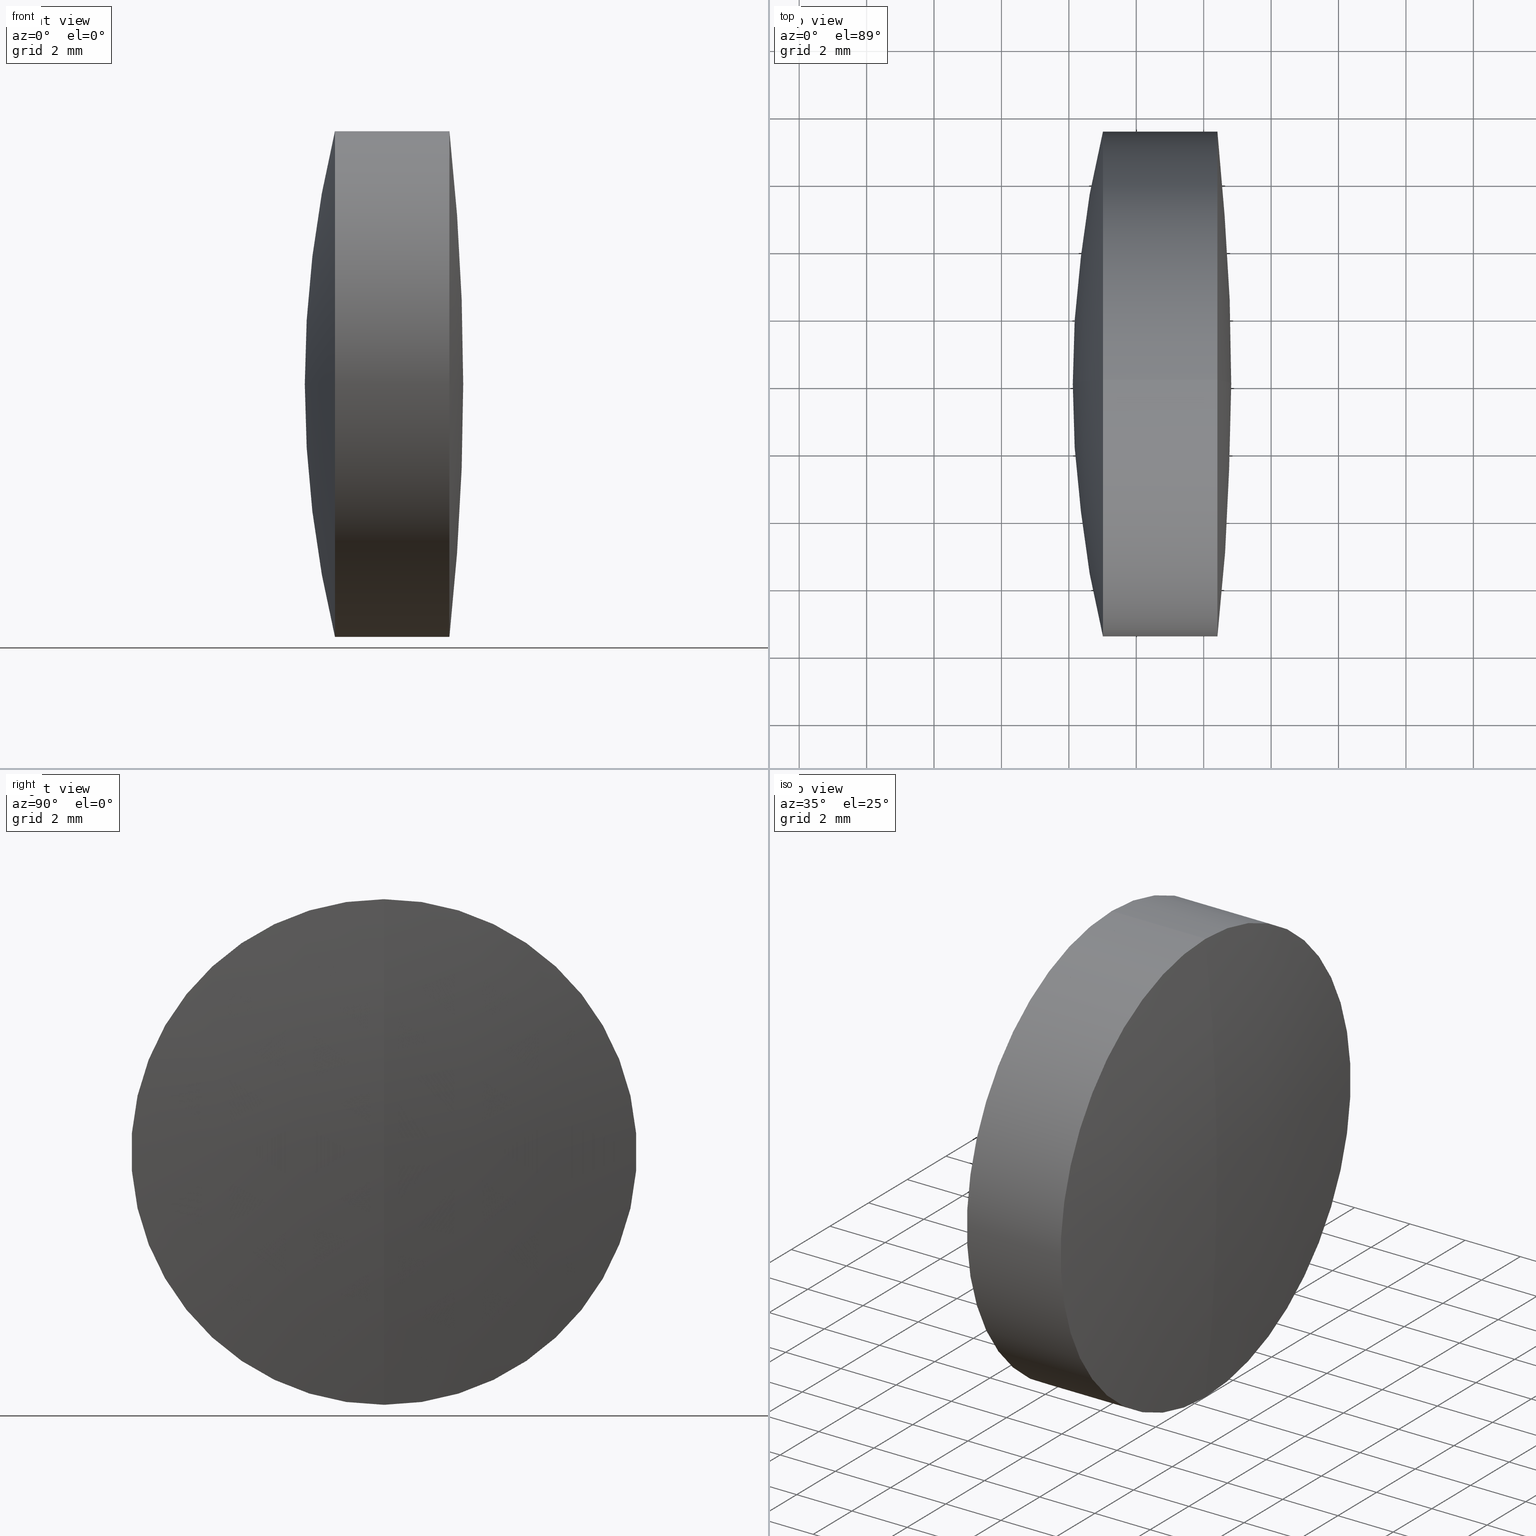
[diagram: canonical four-view strip — front | top / right | iso, engineering-drawing reading convention]
A machine part, canonical four-view strip (front | top / right | iso — engineering-drawing reading convention). The complete STEP part file that produces these views, byte-faithful:
ISO-10303-21;
HEADER;
FILE_DESCRIPTION (( 'STEP AP214' ),
    '1' );
FILE_NAME ('145029.STEP',
    '2019-05-11T02:32:06',
    ( 'user' ),
    ( '΢���й�' ),
    'SwSTEP 2.0',
    'SolidWorks 2016',
    '' );
FILE_SCHEMA (( 'AUTOMOTIVE_DESIGN' ));
ENDSEC;

DATA;
#1 = EDGE_LOOP ( 'NONE', ( #32, #20, #166 ) ) ;
#2 = EDGE_CURVE ( 'NONE', #65, #75, #78, .T. ) ;
#3 = CIRCLE ( 'NONE', #100, 7.500000000000005300 ) ;
#4 = ORIENTED_EDGE ( 'NONE', *, *, #226, .T. ) ;
#5 = ORIENTED_EDGE ( 'NONE', *, *, #72, .T. ) ;
#6 = CARTESIAN_POINT ( 'NONE',  ( 13.01076923225601200, 0.0000000000000000000, -7.500000000000007100 ) ) ;
#7 = AXIS2_PLACEMENT_3D ( 'NONE', #273, #58, #145 ) ;
#8 = CARTESIAN_POINT ( 'NONE',  ( 44.00422892942437900, 0.0000000000000000000, 2.710505431212750000E-017 ) ) ;
#9 = CARTESIAN_POINT ( 'NONE',  ( -52.15877107057561800, 0.0000000000000000000, 0.0000000000000000000 ) ) ;
#10 = DIRECTION ( 'NONE',  ( 0.0000000000000000000, 0.0000000000000000000, 1.000000000000000000 ) ) ;
#11 = LINE ( 'NONE', #342, #49 ) ;
#12 = CARTESIAN_POINT ( 'NONE',  ( 15.01622892942437200, 0.0000000000000000000, 1.446899320903621900E-015 ) ) ;
#13 = CARTESIAN_POINT ( 'NONE',  ( 0.0000000000000000000, 0.0000000000000000000, 0.0000000000000000000 ) ) ;
#14 = PRODUCT_DEFINITION_SHAPE ( 'NONE', 'NONE',  #95 ) ;
#15 = CARTESIAN_POINT ( 'NONE',  ( 13.76976148905017500, 0.0000000000000000000, 0.0000000000000000000 ) ) ;
#16 = DIRECTION ( 'NONE',  ( -1.000000000000000000, -0.0000000000000000000, -0.0000000000000000000 ) ) ;
#17 = CARTESIAN_POINT ( 'NONE',  ( -8.170771070575630900, 0.0000000000000000000, 2.710505431213761100E-017 ) ) ;
#18 = EDGE_CURVE ( 'NONE', #159, #134, #24, .T. ) ;
#19 = ORIENTED_EDGE ( 'NONE', *, *, #313, .F. ) ;
#20 = ORIENTED_EDGE ( 'NONE', *, *, #318, .T. ) ;
#21 = DIRECTION ( 'NONE',  ( -1.000000000000000000, -0.0000000000000000000, -0.0000000000000000000 ) ) ;
#22 = DIRECTION ( 'NONE',  ( -1.000000000000000000, -0.0000000000000000000, -0.0000000000000000000 ) ) ;
#23 = DIRECTION ( 'NONE',  ( 0.0000000000000000000, 0.0000000000000000000, 1.000000000000000000 ) ) ;
#24 = CIRCLE ( 'NONE', #295, 7.500000000000000000 ) ;
#25 = AXIS2_PLACEMENT_3D ( 'NONE', #73, #235, #68 ) ;
#26 = CARTESIAN_POINT ( 'NONE',  ( -8.170771070575630900, 0.0000000000000000000, 2.710505431213761100E-017 ) ) ;
#27 = AXIS2_PLACEMENT_3D ( 'NONE', #320, #286, #225 ) ;
#28 = SURFACE_SIDE_STYLE ('',( #152 ) ) ;
#29 = FACE_OUTER_BOUND ( 'NONE', #102, .T. ) ;
#30 = DIRECTION ( 'NONE',  ( 0.0000000000000000000, 0.0000000000000000000, 1.000000000000000000 ) ) ;
#31 = DIRECTION ( 'NONE',  ( 0.0000000000000000000, -1.224646799147353500E-016, 1.000000000000000000 ) ) ;
#32 = ORIENTED_EDGE ( 'NONE', *, *, #41, .F. ) ;
#33 = SPHERICAL_SURFACE ( 'NONE', #331, 23.18700000000000100 ) ;
#34 = EDGE_CURVE ( 'NONE', #138, #269, #220, .T. ) ;
#35 = ORIENTED_EDGE ( 'NONE', *, *, #318, .F. ) ;
#36 = EDGE_CURVE ( 'NONE', #134, #109, #296, .T. ) ;
#37 = UNCERTAINTY_MEASURE_WITH_UNIT (LENGTH_MEASURE( 1.000000000000000100E-005 ), #121, 'distance_accuracy_value', 'NONE');
#38 = DIRECTION ( 'NONE',  ( 0.0000000000000000000, 0.0000000000000000000, -1.000000000000000000 ) ) ;
#39 = DIRECTION ( 'NONE',  ( 0.0000000000000000000, -1.000000000000000000, -1.224646799147353200E-016 ) ) ;
#40 = DIRECTION ( 'NONE',  ( -0.0000000000000000000, 1.000000000000000000, 1.224646799147353200E-016 ) ) ;
#41 = EDGE_CURVE ( 'NONE', #347, #315, #341, .T. ) ;
#42 = CARTESIAN_POINT ( 'NONE',  ( -52.15877107057561800, 0.0000000000000000000, 0.0000000000000000000 ) ) ;
#43 = CARTESIAN_POINT ( 'NONE',  ( 16.40726006000681300, 0.0000000000000000000, 0.0000000000000000000 ) ) ;
#44 = AXIS2_PLACEMENT_3D ( 'NONE', #43, #67, #48 ) ;
#45 = PRESENTATION_STYLE_ASSIGNMENT (( #83 ) ) ;
#46 =( NAMED_UNIT ( * ) PLANE_ANGLE_UNIT ( ) SI_UNIT ( $, .RADIAN. ) );
#47 = DIRECTION ( 'NONE',  ( -1.000000000000000000, -0.0000000000000000000, -0.0000000000000000000 ) ) ;
#48 = DIRECTION ( 'NONE',  ( 0.0000000000000000000, 0.0000000000000000000, 1.000000000000000000 ) ) ;
#49 = VECTOR ( 'NONE', #21, 1000.000000000000000 ) ;
#50 =( GEOMETRIC_REPRESENTATION_CONTEXT ( 3 ) GLOBAL_UNCERTAINTY_ASSIGNED_CONTEXT ( ( #37 ) ) GLOBAL_UNIT_ASSIGNED_CONTEXT ( ( #121, #63, #312 ) ) REPRESENTATION_CONTEXT ( 'NONE', 'WORKASPACE' ) );
#51 = SPHERICAL_SURFACE ( 'NONE', #185, 23.18700000000000100 ) ;
#52 = FILL_AREA_STYLE ('',( #265 ) ) ;
#53 = DIRECTION ( 'NONE',  ( 0.0000000000000000000, -1.000000000000000000, 0.0000000000000000000 ) ) ;
#54 = VERTEX_POINT ( 'NONE', #339 ) ;
#55 = EDGE_CURVE ( 'NONE', #136, #134, #11, .T. ) ;
#56 = ORIENTED_EDGE ( 'NONE', *, *, #36, .T. ) ;
#57 = CIRCLE ( 'NONE', #205, 7.499999999999992900 ) ;
#58 = DIRECTION ( 'NONE',  ( -1.000000000000000000, -0.0000000000000000000, -0.0000000000000000000 ) ) ;
#59 = DIRECTION ( 'NONE',  ( -0.0000000000000000000, 1.000000000000000000, 1.224646799147353200E-016 ) ) ;
#60 = ORIENTED_EDGE ( 'NONE', *, *, #41, .T. ) ;
#61 = DIRECTION ( 'NONE',  ( 0.0000000000000000000, 0.0000000000000000000, 1.000000000000000000 ) ) ;
#62 = ADVANCED_FACE ( 'NONE', ( #317 ), #332, .T. ) ;
#63 =( NAMED_UNIT ( * ) PLANE_ANGLE_UNIT ( ) SI_UNIT ( $, .RADIAN. ) );
#64 = CARTESIAN_POINT ( 'NONE',  ( 16.40726006000681300, 0.0000000000000000000, 7.499999999999992900 ) ) ;
#65 = VERTEX_POINT ( 'NONE', #64 ) ;
#66 = ORIENTED_EDGE ( 'NONE', *, *, #306, .T. ) ;
#67 = DIRECTION ( 'NONE',  ( -1.000000000000000000, -0.0000000000000000000, -0.0000000000000000000 ) ) ;
#68 = DIRECTION ( 'NONE',  ( 0.0000000000000000000, 0.0000000000000000000, 1.000000000000000000 ) ) ;
#69 = AXIS2_PLACEMENT_3D ( 'NONE', #17, #53, #198 ) ;
#70 = VECTOR ( 'NONE', #82, 1000.000000000000000 ) ;
#71 = PRESENTATION_STYLE_ASSIGNMENT (( #204 ) ) ;
#72 = EDGE_CURVE ( 'NONE', #54, #136, #224, .T. ) ;
#73 = CARTESIAN_POINT ( 'NONE',  ( 13.76976148905017200, 0.0000000000000000000, 0.0000000000000000000 ) ) ;
#74 = CIRCLE ( 'NONE', #25, 7.500000000000005300 ) ;
#75 = VERTEX_POINT ( 'NONE', #304 ) ;
#76 = CARTESIAN_POINT ( 'NONE',  ( 16.40726006000681300, 9.184850993605144000E-016, -7.499999999999992900 ) ) ;
#77 = CARTESIAN_POINT ( 'NONE',  ( 16.81622892942437300, 0.0000000000000000000, 4.223500648559434300E-015 ) ) ;
#78 = LINE ( 'NONE', #230, #153 ) ;
#79 = AXIS2_PLACEMENT_3D ( 'NONE', #168, #333, #38 ) ;
#80 = EDGE_LOOP ( 'NONE', ( #35, #60, #298 ) ) ;
#81 = CIRCLE ( 'NONE', #135, 7.500000000000000000 ) ;
#82 = DIRECTION ( 'NONE',  ( -1.000000000000000000, -0.0000000000000000000, -0.0000000000000000000 ) ) ;
#83 = SURFACE_STYLE_USAGE ( .BOTH. , #282 ) ;
#84 = CARTESIAN_POINT ( 'NONE',  ( 16.40726006000681300, 0.0000000000000000000, 0.0000000000000000000 ) ) ;
#85 = ORIENTED_EDGE ( 'NONE', *, *, #2, .F. ) ;
#86 = CARTESIAN_POINT ( 'NONE',  ( -52.15877107057561800, 0.0000000000000000000, 0.0000000000000000000 ) ) ;
#87 = PRESENTATION_STYLE_ASSIGNMENT (( #101 ) ) ;
#88 = AXIS2_PLACEMENT_3D ( 'NONE', #324, #186, #252 ) ;
#89 = APPLICATION_PROTOCOL_DEFINITION ( 'draft international standard', 'automotive_design', 1998, #130 ) ;
#90 = ORIENTED_EDGE ( 'NONE', *, *, #277, .T. ) ;
#91 = ADVANCED_FACE ( 'NONE', ( #29 ), #143, .T. ) ;
#92 = DIRECTION ( 'NONE',  ( -0.0000000000000000000, -1.000000000000000000, -0.0000000000000000000 ) ) ;
#93 = DIRECTION ( 'NONE',  ( 0.0000000000000000000, 0.0000000000000000000, 1.000000000000000000 ) ) ;
#94 = CARTESIAN_POINT ( 'NONE',  ( 13.01076923225601300, 0.0000000000000000000, 0.0000000000000000000 ) ) ;
#95 = PRODUCT_DEFINITION ( 'δ֪', '', #289, #258 ) ;
#96 = APPLICATION_CONTEXT ( 'automotive_design' ) ;
#97 = ORIENTED_EDGE ( 'NONE', *, *, #244, .T. ) ;
#98 = SPHERICAL_SURFACE ( 'NONE', #173, 31.88799999999999800 ) ;
#99 = FILL_AREA_STYLE ('',( #192 ) ) ;
#100 = AXIS2_PLACEMENT_3D ( 'NONE', #280, #323, #292 ) ;
#101 = SURFACE_STYLE_USAGE ( .BOTH. , #28 ) ;
#102 = EDGE_LOOP ( 'NONE', ( #212, #246, #272, #241 ) ) ;
#103 = ORIENTED_EDGE ( 'NONE', *, *, #34, .F. ) ;
#104 = MECHANICAL_DESIGN_GEOMETRIC_PRESENTATION_REPRESENTATION (  '', ( #326 ), #157 ) ;
#105 =( GEOMETRIC_REPRESENTATION_CONTEXT ( 3 ) GLOBAL_UNCERTAINTY_ASSIGNED_CONTEXT ( ( #178 ) ) GLOBAL_UNIT_ASSIGNED_CONTEXT ( ( #199, #46, #247 ) ) REPRESENTATION_CONTEXT ( 'NONE', 'WORKASPACE' ) );
#106 = EDGE_LOOP ( 'NONE', ( #128, #147, #56 ) ) ;
#107 = EDGE_LOOP ( 'NONE', ( #187, #97, #194 ) ) ;
#108 = DIRECTION ( 'NONE',  ( 0.0000000000000000000, -1.000000000000000000, 0.0000000000000000000 ) ) ;
#109 = VERTEX_POINT ( 'NONE', #167 ) ;
#110 = AXIS2_PLACEMENT_3D ( 'NONE', #9, #108, #249 ) ;
#111 = DIRECTION ( 'NONE',  ( 0.0000000000000000000, 0.0000000000000000000, 1.000000000000000000 ) ) ;
#112 = DIRECTION ( 'NONE',  ( 0.0000000000000000000, 0.0000000000000000000, 1.000000000000000000 ) ) ;
#113 = FILL_AREA_STYLE ('',( #149 ) ) ;
#114 = ORIENTED_EDGE ( 'NONE', *, *, #123, .T. ) ;
#115 = DIRECTION ( 'NONE',  ( 0.0000000000000000000, 1.000000000000000000, 0.0000000000000000000 ) ) ;
#116 = AXIS2_PLACEMENT_3D ( 'NONE', #215, #140, #325 ) ;
#117 = CARTESIAN_POINT ( 'NONE',  ( 13.76976148905017200, 9.184850993605159800E-016, -7.500000000000007100 ) ) ;
#118 =( NAMED_UNIT ( * ) SI_UNIT ( $, .STERADIAN. ) SOLID_ANGLE_UNIT ( ) );
#119 = CARTESIAN_POINT ( 'NONE',  ( 13.76976148905017500, 9.184850993605147900E-016, -7.500000000000000000 ) ) ;
#120 = FACE_OUTER_BOUND ( 'NONE', #148, .T. ) ;
#121 =( LENGTH_UNIT ( ) NAMED_UNIT ( * ) SI_UNIT ( .MILLI., .METRE. ) );
#122 = CYLINDRICAL_SURFACE ( 'NONE', #311, 7.499999999999999100 ) ;
#123 = EDGE_CURVE ( 'NONE', #315, #269, #150, .T. ) ;
#124 = DIRECTION ( 'NONE',  ( 1.000000000000000000, 0.0000000000000000000, 0.0000000000000000000 ) ) ;
#125 = CARTESIAN_POINT ( 'NONE',  ( -8.170771070575630900, 0.0000000000000000000, 2.710505431213761100E-017 ) ) ;
#126 = PRESENTATION_LAYER_ASSIGNMENT (  '', '', ( #262 ) ) ;
#127 = DIRECTION ( 'NONE',  ( 0.0000000000000000000, 1.000000000000000000, 0.0000000000000000000 ) ) ;
#128 = ORIENTED_EDGE ( 'NONE', *, *, #226, .F. ) ;
#129 = EDGE_CURVE ( 'NONE', #54, #159, #266, .T. ) ;
#130 = APPLICATION_CONTEXT ( 'automotive_design' ) ;
#131 = CIRCLE ( 'NONE', #264, 31.88799999999999800 ) ;
#132 = PRODUCT_RELATED_PRODUCT_CATEGORY ( 'part', '', ( #218 ) ) ;
#133 = MANIFOLD_SOLID_BREP ( '��ת3', #281 ) ;
#134 = VERTEX_POINT ( 'NONE', #6 ) ;
#135 = AXIS2_PLACEMENT_3D ( 'NONE', #15, #297, #139 ) ;
#136 = VERTEX_POINT ( 'NONE', #119 ) ;
#137 = ADVANCED_FACE ( 'NONE', ( #236 ), #301, .T. ) ;
#138 = VERTEX_POINT ( 'NONE', #308 ) ;
#139 = DIRECTION ( 'NONE',  ( 0.0000000000000000000, 0.0000000000000000000, 1.000000000000000000 ) ) ;
#140 = DIRECTION ( 'NONE',  ( -1.000000000000000000, -0.0000000000000000000, -0.0000000000000000000 ) ) ;
#141 = ADVANCED_FACE ( 'NONE', ( #161 ), #33, .F. ) ;
#142 = CARTESIAN_POINT ( 'NONE',  ( 13.01076923225601200, -9.184850993605155800E-016, 7.500000000000007100 ) ) ;
#143 = CYLINDRICAL_SURFACE ( 'NONE', #88, 7.500000000000000000 ) ;
#144 = DIRECTION ( 'NONE',  ( 0.0000000000000000000, 0.0000000000000000000, 1.000000000000000000 ) ) ;
#145 = DIRECTION ( 'NONE',  ( 0.0000000000000000000, 0.0000000000000000000, 1.000000000000000000 ) ) ;
#146 = AXIS2_PLACEMENT_3D ( 'NONE', #42, #237, #111 ) ;
#147 = ORIENTED_EDGE ( 'NONE', *, *, #18, .T. ) ;
#148 = EDGE_LOOP ( 'NONE', ( #103, #90, #336 ) ) ;
#149 = FILL_AREA_STYLE_COLOUR ( '', #294 ) ;
#150 = LINE ( 'NONE', #206, #70 ) ;
#151 = DIRECTION ( 'NONE',  ( 0.0000000000000000000, 1.000000000000000000, 0.0000000000000000000 ) ) ;
#152 = SURFACE_STYLE_FILL_AREA ( #52 ) ;
#153 = VECTOR ( 'NONE', #22, 1000.000000000000000 ) ;
#154 = ORIENTED_EDGE ( 'NONE', *, *, #344, .T. ) ;
#155 = ADVANCED_BREP_SHAPE_REPRESENTATION ( '145029', ( #221, #133, #216 ), #243 ) ;
#156 = EDGE_LOOP ( 'NONE', ( #345, #114, #19, #85 ) ) ;
#157 =( GEOMETRIC_REPRESENTATION_CONTEXT ( 3 ) GLOBAL_UNCERTAINTY_ASSIGNED_CONTEXT ( ( #256 ) ) GLOBAL_UNIT_ASSIGNED_CONTEXT ( ( #329, #228, #118 ) ) REPRESENTATION_CONTEXT ( 'NONE', 'WORKASPACE' ) );
#158 = EDGE_LOOP ( 'NONE', ( #305, #4, #314 ) ) ;
#159 = VERTEX_POINT ( 'NONE', #142 ) ;
#160 = ORIENTED_EDGE ( 'NONE', *, *, #55, .T. ) ;
#161 = FACE_OUTER_BOUND ( 'NONE', #184, .T. ) ;
#162 = DIRECTION ( 'NONE',  ( 0.0000000000000000000, 1.000000000000000000, 0.0000000000000000000 ) ) ;
#163 = ADVANCED_FACE ( 'NONE', ( #231 ), #122, .T. ) ;
#164 = ORIENTED_EDGE ( 'NONE', *, *, #34, .T. ) ;
#165 = MECHANICAL_DESIGN_GEOMETRIC_PRESENTATION_REPRESENTATION (  '', ( #262 ), #50 ) ;
#166 = ORIENTED_EDGE ( 'NONE', *, *, #330, .F. ) ;
#167 = CARTESIAN_POINT ( 'NONE',  ( 12.11622892942437700, 0.0000000000000000000, -1.925471802248412300E-015 ) ) ;
#168 = CARTESIAN_POINT ( 'NONE',  ( -8.170771070575630900, 0.0000000000000000000, 2.710505431213761100E-017 ) ) ;
#169 = ORIENTED_EDGE ( 'NONE', *, *, #277, .F. ) ;
#170 = COLOUR_RGB ( '',1.000000000000000000, 1.000000000000000000, 1.000000000000000000 ) ;
#171 = CARTESIAN_POINT ( 'NONE',  ( -8.170771070575630900, 0.0000000000000000000, 2.710505431213761100E-017 ) ) ;
#172 =( LENGTH_UNIT ( ) NAMED_UNIT ( * ) SI_UNIT ( .MILLI., .METRE. ) );
#173 = AXIS2_PLACEMENT_3D ( 'NONE', #207, #283, #287 ) ;
#174 = ADVANCED_FACE ( 'NONE', ( #209 ), #310, .T. ) ;
#175 = ORIENTED_EDGE ( 'NONE', *, *, #344, .F. ) ;
#176 = AXIS2_PLACEMENT_3D ( 'NONE', #125, #40, #248 ) ;
#177 = CIRCLE ( 'NONE', #69, 23.18700000000000100 ) ;
#178 = UNCERTAINTY_MEASURE_WITH_UNIT (LENGTH_MEASURE( 1.000000000000000100E-005 ), #199, 'distance_accuracy_value', 'NONE');
#179 = ORIENTED_EDGE ( 'NONE', *, *, #18, .F. ) ;
#180 = DIRECTION ( 'NONE',  ( -0.0000000000000000000, 1.000000000000000000, 1.224646799147353200E-016 ) ) ;
#181 = SPHERICAL_SURFACE ( 'NONE', #193, 68.97499999999999400 ) ;
#182 =( NAMED_UNIT ( * ) SI_UNIT ( $, .STERADIAN. ) SOLID_ANGLE_UNIT ( ) );
#183 = PRESENTATION_LAYER_ASSIGNMENT (  '', '', ( #208 ) ) ;
#184 = EDGE_LOOP ( 'NONE', ( #169, #164, #154 ) ) ;
#185 = AXIS2_PLACEMENT_3D ( 'NONE', #214, #222, #30 ) ;
#186 = DIRECTION ( 'NONE',  ( -1.000000000000000000, -0.0000000000000000000, -0.0000000000000000000 ) ) ;
#187 = ORIENTED_EDGE ( 'NONE', *, *, #306, .F. ) ;
#188 = CIRCLE ( 'NONE', #223, 23.18700000000000100 ) ;
#189 = ADVANCED_FACE ( 'NONE', ( #291 ), #98, .T. ) ;
#190 = DIRECTION ( 'NONE',  ( 0.0000000000000000000, 0.0000000000000000000, 1.000000000000000000 ) ) ;
#191 = CARTESIAN_POINT ( 'NONE',  ( -8.170771070575630900, 0.0000000000000000000, 2.710505431213761100E-017 ) ) ;
#192 = FILL_AREA_STYLE_COLOUR ( '', #170 ) ;
#193 = AXIS2_PLACEMENT_3D ( 'NONE', #334, #127, #250 ) ;
#194 = ORIENTED_EDGE ( 'NONE', *, *, #72, .F. ) ;
#195 = SURFACE_SIDE_STYLE ('',( #276 ) ) ;
#196 = MECHANICAL_DESIGN_GEOMETRIC_PRESENTATION_REPRESENTATION (  '', ( #208 ), #105 ) ;
#197 = CIRCLE ( 'NONE', #44, 7.499999999999992900 ) ;
#198 = DIRECTION ( 'NONE',  ( 0.0000000000000000000, 0.0000000000000000000, -1.000000000000000000 ) ) ;
#199 =( LENGTH_UNIT ( ) NAMED_UNIT ( * ) SI_UNIT ( .MILLI., .METRE. ) );
#200 = EDGE_LOOP ( 'NONE', ( #257, #66, #309 ) ) ;
#201 = ORIENTED_EDGE ( 'NONE', *, *, #330, .T. ) ;
#202 = ADVANCED_FACE ( 'NONE', ( #242 ), #181, .T. ) ;
#203 = DIRECTION ( 'NONE',  ( 0.0000000000000000000, -1.224646799147353200E-016, 1.000000000000000000 ) ) ;
#204 = SURFACE_STYLE_USAGE ( .BOTH. , #195 ) ;
#205 = AXIS2_PLACEMENT_3D ( 'NONE', #84, #274, #112 ) ;
#206 = CARTESIAN_POINT ( 'NONE',  ( -0.5519199926577972300, 9.184850993605147900E-016, -7.499999999999999100 ) ) ;
#207 = CARTESIAN_POINT ( 'NONE',  ( 44.00422892942437900, 0.0000000000000000000, 2.710505431212750000E-017 ) ) ;
#208 = STYLED_ITEM ( 'NONE', ( #71 ), #133 ) ;
#209 = FACE_OUTER_BOUND ( 'NONE', #106, .T. ) ;
#210 = CIRCLE ( 'NONE', #110, 68.97499999999999400 ) ;
#211 = AXIS2_PLACEMENT_3D ( 'NONE', #171, #162, #10 ) ;
#212 = ORIENTED_EDGE ( 'NONE', *, *, #55, .F. ) ;
#213 = SPHERICAL_SURFACE ( 'NONE', #211, 23.18700000000000100 ) ;
#214 = CARTESIAN_POINT ( 'NONE',  ( -8.170771070575630900, 0.0000000000000000000, 2.710505431213761100E-017 ) ) ;
#215 = CARTESIAN_POINT ( 'NONE',  ( 13.01076923225601300, 0.0000000000000000000, 0.0000000000000000000 ) ) ;
#216 = AXIS2_PLACEMENT_3D ( 'NONE', #13, #144, #124 ) ;
#217 = SHAPE_DEFINITION_REPRESENTATION ( #14, #155 ) ;
#218 = PRODUCT ( '145029', '145029', '', ( #284 ) ) ;
#219 = AXIS2_PLACEMENT_3D ( 'NONE', #340, #255, #190 ) ;
#220 = CIRCLE ( 'NONE', #176, 23.18700000000000100 ) ;
#221 = MANIFOLD_SOLID_BREP ( '��ת1', #271 ) ;
#222 = DIRECTION ( 'NONE',  ( 0.0000000000000000000, 1.000000000000000000, 0.0000000000000000000 ) ) ;
#223 = AXIS2_PLACEMENT_3D ( 'NONE', #263, #180, #31 ) ;
#224 = CIRCLE ( 'NONE', #290, 7.500000000000000000 ) ;
#225 = DIRECTION ( 'NONE',  ( 0.0000000000000000000, 0.0000000000000000000, 1.000000000000000000 ) ) ;
#226 = EDGE_CURVE ( 'NONE', #159, #109, #131, .T. ) ;
#227 = DIRECTION ( 'NONE',  ( -1.000000000000000000, -0.0000000000000000000, -0.0000000000000000000 ) ) ;
#228 =( NAMED_UNIT ( * ) PLANE_ANGLE_UNIT ( ) SI_UNIT ( $, .RADIAN. ) );
#229 = ADVANCED_FACE ( 'NONE', ( #316 ), #337, .T. ) ;
#230 = CARTESIAN_POINT ( 'NONE',  ( -0.5519199926577972300, 0.0000000000000000000, 7.499999999999999100 ) ) ;
#231 = FACE_OUTER_BOUND ( 'NONE', #156, .T. ) ;
#232 = FACE_OUTER_BOUND ( 'NONE', #200, .T. ) ;
#233 = DIRECTION ( 'NONE',  ( 0.0000000000000000000, 0.0000000000000000000, 1.000000000000000000 ) ) ;
#234 = ORIENTED_EDGE ( 'NONE', *, *, #123, .F. ) ;
#235 = DIRECTION ( 'NONE',  ( -1.000000000000000000, -0.0000000000000000000, -0.0000000000000000000 ) ) ;
#236 = FACE_OUTER_BOUND ( 'NONE', #80, .T. ) ;
#237 = DIRECTION ( 'NONE',  ( 0.0000000000000000000, 1.000000000000000000, 0.0000000000000000000 ) ) ;
#238 = PRESENTATION_LAYER_ASSIGNMENT (  '', '', ( #326 ) ) ;
#239 = AXIS2_PLACEMENT_3D ( 'NONE', #327, #92, #302 ) ;
#240 = ORIENTED_EDGE ( 'NONE', *, *, #2, .T. ) ;
#241 = ORIENTED_EDGE ( 'NONE', *, *, #299, .F. ) ;
#242 = FACE_OUTER_BOUND ( 'NONE', #1, .T. ) ;
#243 =( GEOMETRIC_REPRESENTATION_CONTEXT ( 3 ) GLOBAL_UNCERTAINTY_ASSIGNED_CONTEXT ( ( #261 ) ) GLOBAL_UNIT_ASSIGNED_CONTEXT ( ( #172, #346, #182 ) ) REPRESENTATION_CONTEXT ( 'NONE', 'WORKASPACE' ) );
#244 = EDGE_CURVE ( 'NONE', #267, #136, #188, .T. ) ;
#245 = EDGE_LOOP ( 'NONE', ( #234, #201, #240, #175 ) ) ;
#246 = ORIENTED_EDGE ( 'NONE', *, *, #270, .T. ) ;
#247 =( NAMED_UNIT ( * ) SI_UNIT ( $, .STERADIAN. ) SOLID_ANGLE_UNIT ( ) );
#248 = DIRECTION ( 'NONE',  ( 0.0000000000000000000, -1.224646799147353500E-016, 1.000000000000000000 ) ) ;
#249 = DIRECTION ( 'NONE',  ( 0.0000000000000000000, 0.0000000000000000000, -1.000000000000000000 ) ) ;
#250 = DIRECTION ( 'NONE',  ( 0.0000000000000000000, 0.0000000000000000000, 1.000000000000000000 ) ) ;
#251 = CIRCLE ( 'NONE', #116, 7.500000000000000000 ) ;
#252 = DIRECTION ( 'NONE',  ( 0.0000000000000000000, 0.0000000000000000000, 1.000000000000000000 ) ) ;
#253 = VECTOR ( 'NONE', #227, 1000.000000000000000 ) ;
#254 = AXIS2_PLACEMENT_3D ( 'NONE', #86, #59, #203 ) ;
#255 = DIRECTION ( 'NONE',  ( -1.000000000000000000, -0.0000000000000000000, -0.0000000000000000000 ) ) ;
#256 = UNCERTAINTY_MEASURE_WITH_UNIT (LENGTH_MEASURE( 1.000000000000000100E-005 ), #329, 'distance_accuracy_value', 'NONE');
#257 = ORIENTED_EDGE ( 'NONE', *, *, #244, .F. ) ;
#258 = PRODUCT_DEFINITION_CONTEXT ( 'detailed design', #96, 'design' ) ;
#259 = ORIENTED_EDGE ( 'NONE', *, *, #129, .F. ) ;
#260 = APPLICATION_PROTOCOL_DEFINITION ( 'draft international standard', 'automotive_design', 1998, #96 ) ;
#261 = UNCERTAINTY_MEASURE_WITH_UNIT (LENGTH_MEASURE( 1.000000000000000100E-005 ), #172, 'distance_accuracy_value', 'NONE');
#262 = STYLED_ITEM ( 'NONE', ( #45 ), #221 ) ;
#263 = CARTESIAN_POINT ( 'NONE',  ( -8.170771070575630900, 0.0000000000000000000, 2.710505431213761100E-017 ) ) ;
#264 = AXIS2_PLACEMENT_3D ( 'NONE', #8, #39, #338 ) ;
#265 = FILL_AREA_STYLE_COLOUR ( '', #285 ) ;
#266 = LINE ( 'NONE', #275, #253 ) ;
#267 = VERTEX_POINT ( 'NONE', #12 ) ;
#268 = CIRCLE ( 'NONE', #79, 23.18700000000000100 ) ;
#269 = VERTEX_POINT ( 'NONE', #117 ) ;
#270 = EDGE_CURVE ( 'NONE', #136, #54, #81, .T. ) ;
#271 = CLOSED_SHELL ( 'NONE', ( #307, #229, #189, #174, #91, #300 ) ) ;
#272 = ORIENTED_EDGE ( 'NONE', *, *, #129, .T. ) ;
#273 = CARTESIAN_POINT ( 'NONE',  ( -9.702612178336682500, 0.0000000000000000000, 0.0000000000000000000 ) ) ;
#274 = DIRECTION ( 'NONE',  ( -1.000000000000000000, -0.0000000000000000000, -0.0000000000000000000 ) ) ;
#275 = CARTESIAN_POINT ( 'NONE',  ( -9.702612178336682500, 0.0000000000000000000, 7.500000000000000000 ) ) ;
#276 = SURFACE_STYLE_FILL_AREA ( #113 ) ;
#277 = EDGE_CURVE ( 'NONE', #138, #75, #268, .T. ) ;
#278 = DIRECTION ( 'NONE',  ( -1.000000000000000000, -0.0000000000000000000, -0.0000000000000000000 ) ) ;
#279 = SPHERICAL_SURFACE ( 'NONE', #343, 23.18700000000000100 ) ;
#280 = CARTESIAN_POINT ( 'NONE',  ( 13.76976148905017200, 0.0000000000000000000, 0.0000000000000000000 ) ) ;
#281 = CLOSED_SHELL ( 'NONE', ( #137, #163, #141, #303, #62, #202 ) ) ;
#282 = SURFACE_SIDE_STYLE ('',( #322 ) ) ;
#283 = DIRECTION ( 'NONE',  ( -0.0000000000000000000, -1.000000000000000000, -0.0000000000000000000 ) ) ;
#284 = PRODUCT_CONTEXT ( 'NONE', #130, 'mechanical' ) ;
#285 = COLOUR_RGB ( '',1.000000000000000000, 1.000000000000000000, 1.000000000000000000 ) ;
#286 = DIRECTION ( 'NONE',  ( 0.0000000000000000000, 1.000000000000000000, -0.0000000000000000000 ) ) ;
#287 = DIRECTION ( 'NONE',  ( 0.0000000000000000000, 0.0000000000000000000, -1.000000000000000000 ) ) ;
#288 = DIRECTION ( 'NONE',  ( 0.0000000000000000000, 0.0000000000000000000, 1.000000000000000000 ) ) ;
#289 = PRODUCT_DEFINITION_FORMATION_WITH_SPECIFIED_SOURCE ( '�κ�', '', #218, .NOT_KNOWN. ) ;
#290 = AXIS2_PLACEMENT_3D ( 'NONE', #335, #47, #61 ) ;
#291 = FACE_OUTER_BOUND ( 'NONE', #158, .T. ) ;
#292 = DIRECTION ( 'NONE',  ( 0.0000000000000000000, 0.0000000000000000000, 1.000000000000000000 ) ) ;
#293 = EDGE_CURVE ( 'NONE', #65, #315, #57, .T. ) ;
#294 = COLOUR_RGB ( '',1.000000000000000000, 1.000000000000000000, 1.000000000000000000 ) ;
#295 = AXIS2_PLACEMENT_3D ( 'NONE', #94, #16, #233 ) ;
#296 = CIRCLE ( 'NONE', #27, 31.88799999999999800 ) ;
#297 = DIRECTION ( 'NONE',  ( -1.000000000000000000, -0.0000000000000000000, -0.0000000000000000000 ) ) ;
#298 = ORIENTED_EDGE ( 'NONE', *, *, #293, .F. ) ;
#299 = EDGE_CURVE ( 'NONE', #134, #159, #251, .T. ) ;
#300 = ADVANCED_FACE ( 'NONE', ( #232 ), #213, .T. ) ;
#301 = SPHERICAL_SURFACE ( 'NONE', #146, 68.97499999999999400 ) ;
#302 = DIRECTION ( 'NONE',  ( 0.0000000000000000000, 0.0000000000000000000, -1.000000000000000000 ) ) ;
#303 = ADVANCED_FACE ( 'NONE', ( #120 ), #51, .F. ) ;
#304 = CARTESIAN_POINT ( 'NONE',  ( 13.76976148905017200, 0.0000000000000000000, 7.500000000000007100 ) ) ;
#305 = ORIENTED_EDGE ( 'NONE', *, *, #299, .T. ) ;
#306 = EDGE_CURVE ( 'NONE', #267, #54, #177, .T. ) ;
#307 = ADVANCED_FACE ( 'NONE', ( #319 ), #279, .T. ) ;
#308 = CARTESIAN_POINT ( 'NONE',  ( 15.01622892942437200, 0.0000000000000000000, 1.446899320903621900E-015 ) ) ;
#309 = ORIENTED_EDGE ( 'NONE', *, *, #270, .F. ) ;
#310 = SPHERICAL_SURFACE ( 'NONE', #239, 31.88799999999999800 ) ;
#311 = AXIS2_PLACEMENT_3D ( 'NONE', #328, #278, #288 ) ;
#312 =( NAMED_UNIT ( * ) SI_UNIT ( $, .STERADIAN. ) SOLID_ANGLE_UNIT ( ) );
#313 = EDGE_CURVE ( 'NONE', #75, #269, #3, .T. ) ;
#314 = ORIENTED_EDGE ( 'NONE', *, *, #36, .F. ) ;
#315 = VERTEX_POINT ( 'NONE', #76 ) ;
#316 = FACE_OUTER_BOUND ( 'NONE', #321, .T. ) ;
#317 = FACE_OUTER_BOUND ( 'NONE', #245, .T. ) ;
#318 = EDGE_CURVE ( 'NONE', #347, #65, #210, .T. ) ;
#319 = FACE_OUTER_BOUND ( 'NONE', #107, .T. ) ;
#320 = CARTESIAN_POINT ( 'NONE',  ( 44.00422892942437900, 0.0000000000000000000, 2.710505431212750000E-017 ) ) ;
#321 = EDGE_LOOP ( 'NONE', ( #5, #160, #179, #259 ) ) ;
#322 = SURFACE_STYLE_FILL_AREA ( #99 ) ;
#323 = DIRECTION ( 'NONE',  ( -1.000000000000000000, -0.0000000000000000000, -0.0000000000000000000 ) ) ;
#324 = CARTESIAN_POINT ( 'NONE',  ( -9.702612178336682500, 0.0000000000000000000, 0.0000000000000000000 ) ) ;
#325 = DIRECTION ( 'NONE',  ( 0.0000000000000000000, 0.0000000000000000000, 1.000000000000000000 ) ) ;
#326 = STYLED_ITEM ( 'NONE', ( #87 ), #155 ) ;
#327 = CARTESIAN_POINT ( 'NONE',  ( 44.00422892942437900, 0.0000000000000000000, 2.710505431212750000E-017 ) ) ;
#328 = CARTESIAN_POINT ( 'NONE',  ( -0.5519199926577972300, 0.0000000000000000000, 0.0000000000000000000 ) ) ;
#329 =( LENGTH_UNIT ( ) NAMED_UNIT ( * ) SI_UNIT ( .MILLI., .METRE. ) );
#330 = EDGE_CURVE ( 'NONE', #315, #65, #197, .T. ) ;
#331 = AXIS2_PLACEMENT_3D ( 'NONE', #26, #151, #23 ) ;
#332 = CYLINDRICAL_SURFACE ( 'NONE', #219, 7.499999999999999100 ) ;
#333 = DIRECTION ( 'NONE',  ( 0.0000000000000000000, -1.000000000000000000, 0.0000000000000000000 ) ) ;
#334 = CARTESIAN_POINT ( 'NONE',  ( -52.15877107057561800, 0.0000000000000000000, 0.0000000000000000000 ) ) ;
#335 = CARTESIAN_POINT ( 'NONE',  ( 13.76976148905017500, 0.0000000000000000000, 0.0000000000000000000 ) ) ;
#336 = ORIENTED_EDGE ( 'NONE', *, *, #313, .T. ) ;
#337 = CYLINDRICAL_SURFACE ( 'NONE', #7, 7.500000000000000000 ) ;
#338 = DIRECTION ( 'NONE',  ( 0.0000000000000000000, 1.224646799147353500E-016, -1.000000000000000000 ) ) ;
#339 = CARTESIAN_POINT ( 'NONE',  ( 13.76976148905017500, 0.0000000000000000000, 7.500000000000000000 ) ) ;
#340 = CARTESIAN_POINT ( 'NONE',  ( -0.5519199926577972300, 0.0000000000000000000, 0.0000000000000000000 ) ) ;
#341 = CIRCLE ( 'NONE', #254, 68.97499999999999400 ) ;
#342 = CARTESIAN_POINT ( 'NONE',  ( -9.702612178336682500, 9.184850993605147900E-016, -7.500000000000000000 ) ) ;
#343 = AXIS2_PLACEMENT_3D ( 'NONE', #191, #115, #93 ) ;
#344 = EDGE_CURVE ( 'NONE', #269, #75, #74, .T. ) ;
#345 = ORIENTED_EDGE ( 'NONE', *, *, #293, .T. ) ;
#346 =( NAMED_UNIT ( * ) PLANE_ANGLE_UNIT ( ) SI_UNIT ( $, .RADIAN. ) );
#347 = VERTEX_POINT ( 'NONE', #77 ) ;
ENDSEC;
END-ISO-10303-21;
